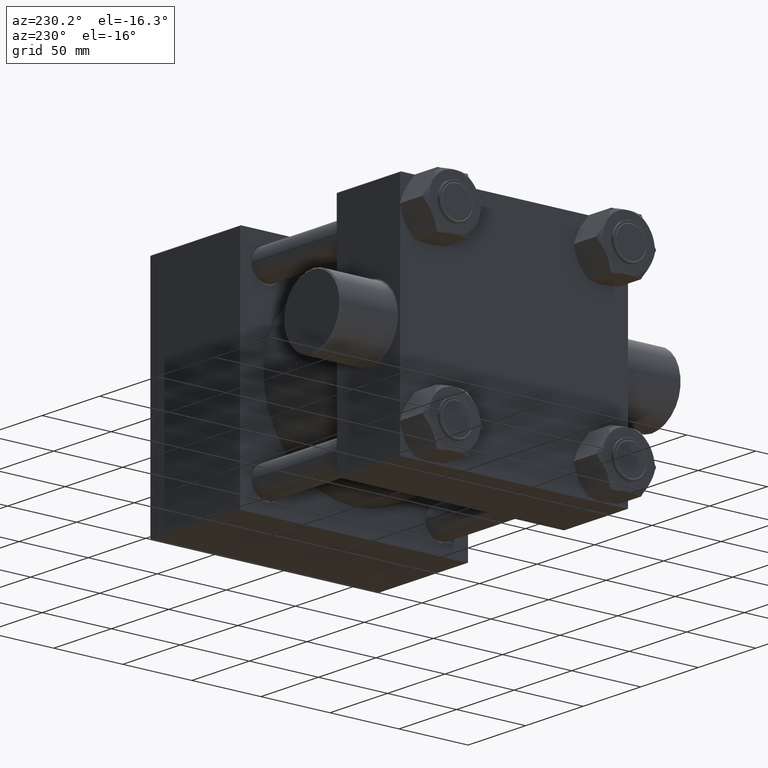
[diagram: clean part render]
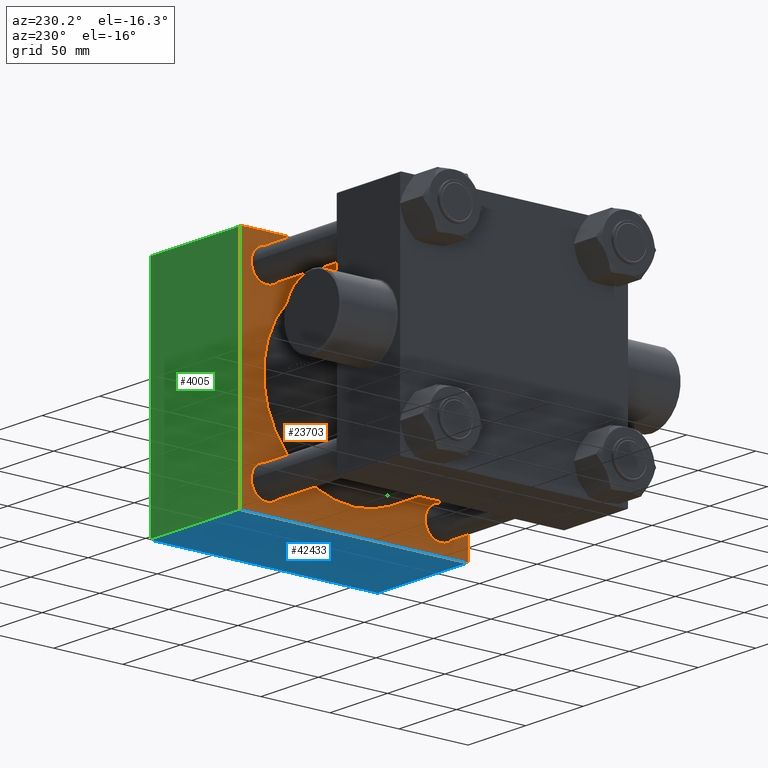
[diagram: same view with three faces highlighted in distinct colors, each labeled with its STEP entity id]
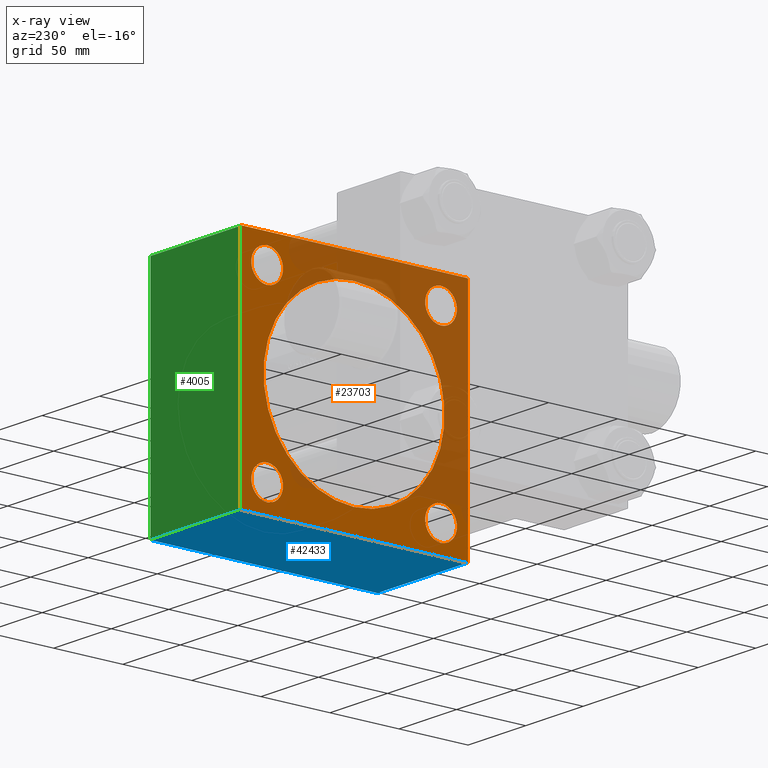
[diagram: x-ray of the same camera — body ghosted, the three highlighted faces saturated]
A machine part, auxiliary view with three faces highlighted in distinct colors.
The next image is the same camera in x-ray (body ghosted, the three faces saturated) — at least one of them is partly hidden behind the body in this view.
Their STEP definitions:

[orange] entity #23703 — the highlighted planar face has unit normal (-1, 0, 0).
#111 = EDGE_CURVE ( 'NONE', #33348, #15923, #12541, .T. ) ;
#145 = LINE ( 'NONE', #31622, #38029 ) ;
#950 = CIRCLE ( 'NONE', #26516, 65.50000000000001421 ) ;
#1312 = EDGE_CURVE ( 'NONE', #43818, #16291, #31535, .T. ) ;
#1494 = VERTEX_POINT ( 'NONE', #45118 ) ;
#1627 = EDGE_LOOP ( 'NONE', ( #40289, #6617 ) ) ;
#2046 = FACE_BOUND ( 'NONE', #21783, .T. ) ;
#3240 = DIRECTION ( 'NONE',  ( 0.000000000000000000, 0.000000000000000000, 1.000000000000000000 ) ) ;
#3482 = EDGE_CURVE ( 'NONE', #42734, #20552, #23635, .T. ) ;
#3496 = CARTESIAN_POINT ( 'NONE',  ( 139.0000000000000000, -3.469446951953614189E-15, 65.50000000000001421 ) ) ;
#3606 = DIRECTION ( 'NONE',  ( 1.000000000000000000, 0.000000000000000000, 0.000000000000000000 ) ) ;
#3743 = EDGE_CURVE ( 'NONE', #16291, #43818, #41412, .T. ) ;
#3894 = VECTOR ( 'NONE', #43541, 1000.000000000000114 ) ;
#4653 = CARTESIAN_POINT ( 'NONE',  ( 139.0000000000000000, -62.94999999999998153, 62.95000000000001705 ) ) ;
#5122 = VECTOR ( 'NONE', #37870, 1000.000000000000000 ) ;
#5713 = CARTESIAN_POINT ( 'NONE',  ( 139.0000000000000000, -62.94999999999998153, 74.45000000000003126 ) ) ;
#5932 = CARTESIAN_POINT ( 'NONE',  ( 139.0000000000000000, 82.49999999999998579, 82.50000000000001421 ) ) ;
#6477 = DIRECTION ( 'NONE',  ( 1.000000000000000000, 0.000000000000000000, 0.000000000000000000 ) ) ;
#6535 = ORIENTED_EDGE ( 'NONE', *, *, #33708, .T. ) ;
#6617 = ORIENTED_EDGE ( 'NONE', *, *, #1312, .T. ) ;
#6712 = CARTESIAN_POINT ( 'NONE',  ( 139.0000000000000000, -3.469446951953614189E-15, 0.000000000000000000 ) ) ;
#6836 = EDGE_CURVE ( 'NONE', #32710, #34894, #27932, .T. ) ;
#6918 = DIRECTION ( 'NONE',  ( 0.000000000000000000, 0.000000000000000000, -1.000000000000000000 ) ) ;
#7301 = CARTESIAN_POINT ( 'NONE',  ( 139.0000000000000000, -62.94999999999998153, -62.95000000000001705 ) ) ;
#7356 = ORIENTED_EDGE ( 'NONE', *, *, #46299, .T. ) ;
#7411 = AXIS2_PLACEMENT_3D ( 'NONE', #7301, #7526, #29525 ) ;
#7526 = DIRECTION ( 'NONE',  ( 1.000000000000000000, -0.000000000000000000, 0.000000000000000000 ) ) ;
#7734 = CARTESIAN_POINT ( 'NONE',  ( 139.0000000000000000, 82.49999999999998579, -82.00000000000001421 ) ) ;
#8078 = AXIS2_PLACEMENT_3D ( 'NONE', #27933, #17743, #35067 ) ;
#8377 = DIRECTION ( 'NONE',  ( 0.000000000000000000, 0.000000000000000000, 1.000000000000000000 ) ) ;
#8412 = CARTESIAN_POINT ( 'NONE',  ( 139.0000000000000000, -62.94999999999998153, 51.45000000000000995 ) ) ;
#8430 = DIRECTION ( 'NONE',  ( 0.000000000000000000, 0.000000000000000000, 1.000000000000000000 ) ) ;
#8461 = LINE ( 'NONE', #36898, #24244 ) ;
#8489 = AXIS2_PLACEMENT_3D ( 'NONE', #12198, #37573, #23568 ) ;
#8611 = AXIS2_PLACEMENT_3D ( 'NONE', #33961, #16413, #12625 ) ;
#8687 = DIRECTION ( 'NONE',  ( -0.000000000000000000, 0.7071067811865474617, 0.7071067811865474617 ) ) ;
#9452 = DIRECTION ( 'NONE',  ( 0.000000000000000000, 0.000000000000000000, 1.000000000000000000 ) ) ;
#9700 = CARTESIAN_POINT ( 'NONE',  ( 139.0000000000000000, 82.49999999999998579, 82.00000000000001421 ) ) ;
#9964 = CARTESIAN_POINT ( 'NONE',  ( 139.0000000000000000, -62.94999999999998153, -74.45000000000001705 ) ) ;
#10629 = DIRECTION ( 'NONE',  ( -0.000000000000000000, -0.7071067811865474617, -0.7071067811865474617 ) ) ;
#10666 = AXIS2_PLACEMENT_3D ( 'NONE', #4653, #19062, #8430 ) ;
#10743 = EDGE_LOOP ( 'NONE', ( #12380, #14161, #33103, #6535, #25591, #24472, #28148, #39180 ) ) ;
#11313 = CARTESIAN_POINT ( 'NONE',  ( 139.0000000000000000, 82.25000000000000000, -82.25000000000000000 ) ) ;
#11343 = ORIENTED_EDGE ( 'NONE', *, *, #23921, .T. ) ;
#11465 = VECTOR ( 'NONE', #10629, 1000.000000000000114 ) ;
#11707 = EDGE_CURVE ( 'NONE', #1494, #30533, #32480, .T. ) ;
#12198 = CARTESIAN_POINT ( 'NONE',  ( 139.0000000000000000, 0.000000000000000000, 0.000000000000000000 ) ) ;
#12380 = ORIENTED_EDGE ( 'NONE', *, *, #3482, .T. ) ;
#12541 = CIRCLE ( 'NONE', #33751, 11.49999999999999645 ) ;
#12622 = CARTESIAN_POINT ( 'NONE',  ( 139.0000000000000000, 82.49999999999998579, 82.50000000000001421 ) ) ;
#12625 = DIRECTION ( 'NONE',  ( 0.000000000000000000, 0.000000000000000000, 1.000000000000000000 ) ) ;
#13137 = EDGE_LOOP ( 'NONE', ( #28074, #45401 ) ) ;
#13614 = DIRECTION ( 'NONE',  ( 0.000000000000000000, 8.410780489584517938E-17, -1.000000000000000000 ) ) ;
#13726 = CARTESIAN_POINT ( 'NONE',  ( 139.0000000000000000, -82.50000000000000000, -82.00000000000007105 ) ) ;
#13760 = VERTEX_POINT ( 'NONE', #3496 ) ;
#13809 = CIRCLE ( 'NONE', #42566, 11.50000000000001066 ) ;
#14161 = ORIENTED_EDGE ( 'NONE', *, *, #16986, .T. ) ;
#15195 = CARTESIAN_POINT ( 'NONE',  ( 139.0000000000000000, 62.95000000000000284, -62.95000000000000284 ) ) ;
#15523 = FACE_BOUND ( 'NONE', #27888, .T. ) ;
#15923 = VERTEX_POINT ( 'NONE', #26211 ) ;
#16291 = VERTEX_POINT ( 'NONE', #45603 ) ;
#16413 = DIRECTION ( 'NONE',  ( 1.000000000000000000, -0.000000000000000000, 0.000000000000000000 ) ) ;
#16592 = CIRCLE ( 'NONE', #22638, 11.49999999999999645 ) ;
#16986 = EDGE_CURVE ( 'NONE', #20552, #18387, #46641, .T. ) ;
#17071 = EDGE_CURVE ( 'NONE', #42359, #29022, #30866, .T. ) ;
#17117 = ORIENTED_EDGE ( 'NONE', *, *, #38005, .T. ) ;
#17584 = DIRECTION ( 'NONE',  ( 0.000000000000000000, 0.000000000000000000, -1.000000000000000000 ) ) ;
#17664 = EDGE_CURVE ( 'NONE', #34894, #42734, #28633, .T. ) ;
#17743 = DIRECTION ( 'NONE',  ( 1.000000000000000000, -0.000000000000000000, 0.000000000000000000 ) ) ;
#18001 = CARTESIAN_POINT ( 'NONE',  ( 139.0000000000000000, 4.551989582461549848E-15, -65.50000000000001421 ) ) ;
#18011 = CARTESIAN_POINT ( 'NONE',  ( 139.0000000000000000, -3.469446951953614189E-15, 0.000000000000000000 ) ) ;
#18092 = CARTESIAN_POINT ( 'NONE',  ( 139.0000000000000000, -82.00000000000004263, -82.50000000000002842 ) ) ;
#18352 = EDGE_CURVE ( 'NONE', #42359, #32710, #46432, .T. ) ;
#18387 = VERTEX_POINT ( 'NONE', #13726 ) ;
#18741 = DIRECTION ( 'NONE',  ( 0.000000000000000000, 0.000000000000000000, 1.000000000000000000 ) ) ;
#18953 = AXIS2_PLACEMENT_3D ( 'NONE', #18011, #3606, #6918 ) ;
#19062 = DIRECTION ( 'NONE',  ( 1.000000000000000000, -0.000000000000000000, 0.000000000000000000 ) ) ;
#19360 = CARTESIAN_POINT ( 'NONE',  ( 139.0000000000000000, 82.49999999999998579, -82.49999999999998579 ) ) ;
#19485 = DIRECTION ( 'NONE',  ( 0.000000000000000000, -1.000000000000000000, -1.682156097916903834E-16 ) ) ;
#20251 = FACE_BOUND ( 'NONE', #13137, .T. ) ;
#20552 = VERTEX_POINT ( 'NONE', #18092 ) ;
#20692 = ORIENTED_EDGE ( 'NONE', *, *, #33312, .T. ) ;
#20724 = EDGE_CURVE ( 'NONE', #13760, #25679, #950, .T. ) ;
#20942 = VECTOR ( 'NONE', #24382, 1000.000000000000000 ) ;
#21038 = VERTEX_POINT ( 'NONE', #5713 ) ;
#21288 = VECTOR ( 'NONE', #41940, 1000.000000000000114 ) ;
#21783 = EDGE_LOOP ( 'NONE', ( #7356, #42148 ) ) ;
#22575 = CARTESIAN_POINT ( 'NONE',  ( 139.0000000000000000, -62.94999999999998153, 62.95000000000001705 ) ) ;
#22638 = AXIS2_PLACEMENT_3D ( 'NONE', #15195, #40114, #18741 ) ;
#23085 = FACE_BOUND ( 'NONE', #1627, .T. ) ;
#23568 = DIRECTION ( 'NONE',  ( -0.000000000000000000, 0.000000000000000000, 1.000000000000000000 ) ) ;
#23635 = LINE ( 'NONE', #19360, #5122 ) ;
#23703 = ADVANCED_FACE ( 'NONE', ( #34722, #2046, #20251, #23085, #15523, #30670 ), #30197, .T. ) ;
#23921 = EDGE_CURVE ( 'NONE', #21038, #34984, #13809, .T. ) ;
#24244 = VECTOR ( 'NONE', #8687, 1000.000000000000114 ) ;
#24382 = DIRECTION ( 'NONE',  ( 0.000000000000000000, 0.000000000000000000, -1.000000000000000000 ) ) ;
#24472 = ORIENTED_EDGE ( 'NONE', *, *, #18352, .T. ) ;
#24753 = CARTESIAN_POINT ( 'NONE',  ( 139.0000000000000000, 62.95000000000000284, 62.95000000000000284 ) ) ;
#25591 = ORIENTED_EDGE ( 'NONE', *, *, #17071, .F. ) ;
#25679 = VERTEX_POINT ( 'NONE', #18001 ) ;
#26211 = CARTESIAN_POINT ( 'NONE',  ( 139.0000000000000000, 62.95000000000000284, 74.45000000000000284 ) ) ;
#26251 = CARTESIAN_POINT ( 'NONE',  ( 139.0000000000000000, -82.00000000000001421, 82.49999999999998579 ) ) ;
#26516 = AXIS2_PLACEMENT_3D ( 'NONE', #6712, #6477, #17584 ) ;
#27183 = EDGE_LOOP ( 'NONE', ( #11343, #17117 ) ) ;
#27394 = CARTESIAN_POINT ( 'NONE',  ( 139.0000000000000000, 81.99999999999998579, 82.50000000000001421 ) ) ;
#27888 = EDGE_LOOP ( 'NONE', ( #39071, #20692 ) ) ;
#27932 = LINE ( 'NONE', #5932, #20942 ) ;
#27933 = CARTESIAN_POINT ( 'NONE',  ( 139.0000000000000000, -62.94999999999998153, -62.95000000000001705 ) ) ;
#28074 = ORIENTED_EDGE ( 'NONE', *, *, #31476, .T. ) ;
#28148 = ORIENTED_EDGE ( 'NONE', *, *, #6836, .T. ) ;
#28633 = LINE ( 'NONE', #11313, #11465 ) ;
#28927 = CARTESIAN_POINT ( 'NONE',  ( 139.0000000000000000, 62.95000000000000284, 51.45000000000000995 ) ) ;
#28944 = CARTESIAN_POINT ( 'NONE',  ( 139.0000000000000000, 82.00000000000001421, -82.49999999999998579 ) ) ;
#29022 = VERTEX_POINT ( 'NONE', #26251 ) ;
#29525 = DIRECTION ( 'NONE',  ( 0.000000000000000000, 0.000000000000000000, 1.000000000000000000 ) ) ;
#30197 = PLANE ( 'NONE',  #8489 ) ;
#30533 = VERTEX_POINT ( 'NONE', #42738 ) ;
#30670 = FACE_OUTER_BOUND ( 'NONE', #10743, .T. ) ;
#30866 = LINE ( 'NONE', #12622, #37139 ) ;
#31476 = EDGE_CURVE ( 'NONE', #30533, #1494, #16592, .T. ) ;
#31535 = CIRCLE ( 'NONE', #8078, 11.49999999999999645 ) ;
#31622 = CARTESIAN_POINT ( 'NONE',  ( 139.0000000000000000, -82.50000000000001421, 82.49999999999998579 ) ) ;
#32480 = CIRCLE ( 'NONE', #43081, 11.49999999999999645 ) ;
#32710 = VERTEX_POINT ( 'NONE', #9700 ) ;
#33103 = ORIENTED_EDGE ( 'NONE', *, *, #41481, .F. ) ;
#33312 = EDGE_CURVE ( 'NONE', #25679, #13760, #43935, .T. ) ;
#33348 = VERTEX_POINT ( 'NONE', #28927 ) ;
#33708 = EDGE_CURVE ( 'NONE', #34529, #29022, #8461, .T. ) ;
#33751 = AXIS2_PLACEMENT_3D ( 'NONE', #24753, #46344, #3240 ) ;
#33961 = CARTESIAN_POINT ( 'NONE',  ( 139.0000000000000000, 62.95000000000000284, 62.95000000000000284 ) ) ;
#34363 = CIRCLE ( 'NONE', #8611, 11.49999999999999645 ) ;
#34529 = VERTEX_POINT ( 'NONE', #35840 ) ;
#34722 = FACE_BOUND ( 'NONE', #27183, .T. ) ;
#34894 = VERTEX_POINT ( 'NONE', #7734 ) ;
#34984 = VERTEX_POINT ( 'NONE', #8412 ) ;
#35062 = CARTESIAN_POINT ( 'NONE',  ( 139.0000000000000000, 82.25000000000000000, 82.25000000000000000 ) ) ;
#35067 = DIRECTION ( 'NONE',  ( 0.000000000000000000, 0.000000000000000000, 1.000000000000000000 ) ) ;
#35840 = CARTESIAN_POINT ( 'NONE',  ( 139.0000000000000000, -82.50000000000001421, 81.99999999999998579 ) ) ;
#36898 = CARTESIAN_POINT ( 'NONE',  ( 139.0000000000000000, -82.25000000000000000, 82.25000000000000000 ) ) ;
#37139 = VECTOR ( 'NONE', #19485, 1000.000000000000000 ) ;
#37573 = DIRECTION ( 'NONE',  ( -1.000000000000000000, 0.000000000000000000, -0.000000000000000000 ) ) ;
#37870 = DIRECTION ( 'NONE',  ( 0.000000000000000000, -1.000000000000000000, -2.523234146875355998E-16 ) ) ;
#38005 = EDGE_CURVE ( 'NONE', #34984, #21038, #39432, .T. ) ;
#38029 = VECTOR ( 'NONE', #13614, 1000.000000000000000 ) ;
#39071 = ORIENTED_EDGE ( 'NONE', *, *, #20724, .T. ) ;
#39180 = ORIENTED_EDGE ( 'NONE', *, *, #17664, .T. ) ;
#39432 = CIRCLE ( 'NONE', #10666, 11.50000000000001066 ) ;
#40114 = DIRECTION ( 'NONE',  ( 1.000000000000000000, -0.000000000000000000, 0.000000000000000000 ) ) ;
#40289 = ORIENTED_EDGE ( 'NONE', *, *, #3743, .T. ) ;
#40840 = DIRECTION ( 'NONE',  ( 1.000000000000000000, -0.000000000000000000, 0.000000000000000000 ) ) ;
#41412 = CIRCLE ( 'NONE', #7411, 11.49999999999999645 ) ;
#41481 = EDGE_CURVE ( 'NONE', #34529, #18387, #145, .T. ) ;
#41922 = DIRECTION ( 'NONE',  ( 1.000000000000000000, -0.000000000000000000, 0.000000000000000000 ) ) ;
#41940 = DIRECTION ( 'NONE',  ( 0.000000000000000000, 0.7071067811865474617, -0.7071067811865474617 ) ) ;
#42148 = ORIENTED_EDGE ( 'NONE', *, *, #111, .T. ) ;
#42359 = VERTEX_POINT ( 'NONE', #27394 ) ;
#42566 = AXIS2_PLACEMENT_3D ( 'NONE', #22575, #40840, #8377 ) ;
#42734 = VERTEX_POINT ( 'NONE', #28944 ) ;
#42738 = CARTESIAN_POINT ( 'NONE',  ( 139.0000000000000000, 62.95000000000000284, -51.45000000000000995 ) ) ;
#43081 = AXIS2_PLACEMENT_3D ( 'NONE', #45939, #41922, #9452 ) ;
#43541 = DIRECTION ( 'NONE',  ( 0.000000000000000000, -0.7071067811865474617, 0.7071067811865474617 ) ) ;
#43818 = VERTEX_POINT ( 'NONE', #9964 ) ;
#43935 = CIRCLE ( 'NONE', #18953, 65.50000000000001421 ) ;
#45118 = CARTESIAN_POINT ( 'NONE',  ( 139.0000000000000000, 62.95000000000000284, -74.45000000000000284 ) ) ;
#45401 = ORIENTED_EDGE ( 'NONE', *, *, #11707, .T. ) ;
#45603 = CARTESIAN_POINT ( 'NONE',  ( 139.0000000000000000, -62.94999999999998153, -51.45000000000002416 ) ) ;
#45939 = CARTESIAN_POINT ( 'NONE',  ( 139.0000000000000000, 62.95000000000000284, -62.95000000000000284 ) ) ;
#46299 = EDGE_CURVE ( 'NONE', #15923, #33348, #34363, .T. ) ;
#46344 = DIRECTION ( 'NONE',  ( 1.000000000000000000, -0.000000000000000000, 0.000000000000000000 ) ) ;
#46411 = CARTESIAN_POINT ( 'NONE',  ( 139.0000000000000000, -82.25000000000002842, -82.25000000000002842 ) ) ;
#46432 = LINE ( 'NONE', #35062, #21288 ) ;
#46641 = LINE ( 'NONE', #46411, #3894 ) ;

[blue] entity #42433 — the highlighted planar face has unit normal (0, 0, -1).
#1976 = CARTESIAN_POINT ( 'NONE',  ( 217.0000000000000284, 82.49999999999998579, -82.49999999999998579 ) ) ;
#3482 = EDGE_CURVE ( 'NONE', #42734, #20552, #23635, .T. ) ;
#4347 = ORIENTED_EDGE ( 'NONE', *, *, #40779, .T. ) ;
#5122 = VECTOR ( 'NONE', #37870, 1000.000000000000000 ) ;
#5759 = DIRECTION ( 'NONE',  ( 0.000000000000000000, -1.000000000000000000, -2.523234146875355998E-16 ) ) ;
#6496 = ORIENTED_EDGE ( 'NONE', *, *, #29285, .T. ) ;
#6898 = EDGE_CURVE ( 'NONE', #42734, #14366, #21757, .T. ) ;
#6970 = CARTESIAN_POINT ( 'NONE',  ( 217.0000000000000284, 82.00000000000001421, -82.49999999999998579 ) ) ;
#11094 = CARTESIAN_POINT ( 'NONE',  ( 217.0000000000000284, 82.00000000000001421, -82.49999999999998579 ) ) ;
#12722 = ORIENTED_EDGE ( 'NONE', *, *, #3482, .F. ) ;
#14366 = VERTEX_POINT ( 'NONE', #6970 ) ;
#14608 = VERTEX_POINT ( 'NONE', #16841 ) ;
#16841 = CARTESIAN_POINT ( 'NONE',  ( 217.0000000000000284, -82.00000000000004263, -82.50000000000002842 ) ) ;
#17987 = ORIENTED_EDGE ( 'NONE', *, *, #6898, .T. ) ;
#18092 = CARTESIAN_POINT ( 'NONE',  ( 139.0000000000000000, -82.00000000000004263, -82.50000000000002842 ) ) ;
#19223 = CARTESIAN_POINT ( 'NONE',  ( 217.0000000000000284, 82.49999999999998579, -82.49999999999998579 ) ) ;
#19338 = EDGE_LOOP ( 'NONE', ( #4347, #6496, #12722, #17987 ) ) ;
#19360 = CARTESIAN_POINT ( 'NONE',  ( 139.0000000000000000, 82.49999999999998579, -82.49999999999998579 ) ) ;
#20185 = VECTOR ( 'NONE', #25537, 1000.000000000000000 ) ;
#20552 = VERTEX_POINT ( 'NONE', #18092 ) ;
#21757 = LINE ( 'NONE', #11094, #20185 ) ;
#22326 = FACE_OUTER_BOUND ( 'NONE', #19338, .T. ) ;
#23635 = LINE ( 'NONE', #19360, #5122 ) ;
#25537 = DIRECTION ( 'NONE',  ( 1.000000000000000000, 0.000000000000000000, 0.000000000000000000 ) ) ;
#25887 = PLANE ( 'NONE',  #38054 ) ;
#28944 = CARTESIAN_POINT ( 'NONE',  ( 139.0000000000000000, 82.00000000000001421, -82.49999999999998579 ) ) ;
#29285 = EDGE_CURVE ( 'NONE', #14608, #20552, #40215, .T. ) ;
#29446 = DIRECTION ( 'NONE',  ( 0.000000000000000000, 1.000000000000000000, 2.523234146875355998E-16 ) ) ;
#30601 = LINE ( 'NONE', #1976, #34224 ) ;
#33318 = DIRECTION ( 'NONE',  ( -1.000000000000000000, 0.000000000000000000, 0.000000000000000000 ) ) ;
#34224 = VECTOR ( 'NONE', #5759, 1000.000000000000000 ) ;
#36582 = DIRECTION ( 'NONE',  ( 0.000000000000000000, 2.523234146875355998E-16, -1.000000000000000000 ) ) ;
#37870 = DIRECTION ( 'NONE',  ( 0.000000000000000000, -1.000000000000000000, -2.523234146875355998E-16 ) ) ;
#38054 = AXIS2_PLACEMENT_3D ( 'NONE', #19223, #36582, #29446 ) ;
#39340 = VECTOR ( 'NONE', #33318, 1000.000000000000000 ) ;
#40215 = LINE ( 'NONE', #40675, #39340 ) ;
#40675 = CARTESIAN_POINT ( 'NONE',  ( 139.0000000000000000, -82.00000000000004263, -82.50000000000002842 ) ) ;
#40779 = EDGE_CURVE ( 'NONE', #14366, #14608, #30601, .T. ) ;
#42433 = ADVANCED_FACE ( 'NONE', ( #22326 ), #25887, .T. ) ;
#42734 = VERTEX_POINT ( 'NONE', #28944 ) ;

[green] entity #4005 — the highlighted planar face has unit normal (0, 1, 0).
#909 = VECTOR ( 'NONE', #3021, 1000.000000000000000 ) ;
#1182 = EDGE_LOOP ( 'NONE', ( #41586, #41180, #32699, #1477 ) ) ;
#1477 = ORIENTED_EDGE ( 'NONE', *, *, #7234, .T. ) ;
#3021 = DIRECTION ( 'NONE',  ( 0.000000000000000000, 0.000000000000000000, -1.000000000000000000 ) ) ;
#4005 = ADVANCED_FACE ( 'NONE', ( #16588 ), #45519, .T. ) ;
#5932 = CARTESIAN_POINT ( 'NONE',  ( 139.0000000000000000, 82.49999999999998579, 82.50000000000001421 ) ) ;
#6836 = EDGE_CURVE ( 'NONE', #32710, #34894, #27932, .T. ) ;
#7234 = EDGE_CURVE ( 'NONE', #16888, #34894, #44892, .T. ) ;
#7734 = CARTESIAN_POINT ( 'NONE',  ( 139.0000000000000000, 82.49999999999998579, -82.00000000000001421 ) ) ;
#8641 = DIRECTION ( 'NONE',  ( 1.000000000000000000, 0.000000000000000000, 0.000000000000000000 ) ) ;
#9297 = CARTESIAN_POINT ( 'NONE',  ( 217.0000000000000284, 82.49999999999998579, 82.00000000000001421 ) ) ;
#9700 = CARTESIAN_POINT ( 'NONE',  ( 139.0000000000000000, 82.49999999999998579, 82.00000000000001421 ) ) ;
#12803 = CARTESIAN_POINT ( 'NONE',  ( 217.0000000000000284, 82.49999999999998579, 82.50000000000001421 ) ) ;
#13416 = CARTESIAN_POINT ( 'NONE',  ( 217.0000000000000284, 82.49999999999998579, 82.50000000000001421 ) ) ;
#16588 = FACE_OUTER_BOUND ( 'NONE', #1182, .T. ) ;
#16888 = VERTEX_POINT ( 'NONE', #23645 ) ;
#18712 = EDGE_CURVE ( 'NONE', #36269, #16888, #31665, .T. ) ;
#19460 = AXIS2_PLACEMENT_3D ( 'NONE', #12803, #23700, #31050 ) ;
#20942 = VECTOR ( 'NONE', #24382, 1000.000000000000000 ) ;
#23645 = CARTESIAN_POINT ( 'NONE',  ( 217.0000000000000284, 82.49999999999998579, -82.00000000000001421 ) ) ;
#23700 = DIRECTION ( 'NONE',  ( -0.000000000000000000, 1.000000000000000000, 0.000000000000000000 ) ) ;
#24382 = DIRECTION ( 'NONE',  ( 0.000000000000000000, 0.000000000000000000, -1.000000000000000000 ) ) ;
#27932 = LINE ( 'NONE', #5932, #20942 ) ;
#30049 = VECTOR ( 'NONE', #30424, 1000.000000000000000 ) ;
#30424 = DIRECTION ( 'NONE',  ( -1.000000000000000000, 0.000000000000000000, 0.000000000000000000 ) ) ;
#31050 = DIRECTION ( 'NONE',  ( 0.000000000000000000, -0.000000000000000000, 1.000000000000000000 ) ) ;
#31665 = LINE ( 'NONE', #13416, #909 ) ;
#32699 = ORIENTED_EDGE ( 'NONE', *, *, #18712, .T. ) ;
#32710 = VERTEX_POINT ( 'NONE', #9700 ) ;
#33417 = VECTOR ( 'NONE', #8641, 1000.000000000000000 ) ;
#34894 = VERTEX_POINT ( 'NONE', #7734 ) ;
#36269 = VERTEX_POINT ( 'NONE', #9297 ) ;
#37325 = CARTESIAN_POINT ( 'NONE',  ( 217.0000000000000284, 82.49999999999998579, 82.00000000000001421 ) ) ;
#40369 = EDGE_CURVE ( 'NONE', #32710, #36269, #43960, .T. ) ;
#41180 = ORIENTED_EDGE ( 'NONE', *, *, #40369, .T. ) ;
#41586 = ORIENTED_EDGE ( 'NONE', *, *, #6836, .F. ) ;
#43960 = LINE ( 'NONE', #37325, #33417 ) ;
#44421 = CARTESIAN_POINT ( 'NONE',  ( 217.0000000000000284, 82.49999999999998579, -82.00000000000001421 ) ) ;
#44892 = LINE ( 'NONE', #44421, #30049 ) ;
#45519 = PLANE ( 'NONE',  #19460 ) ;